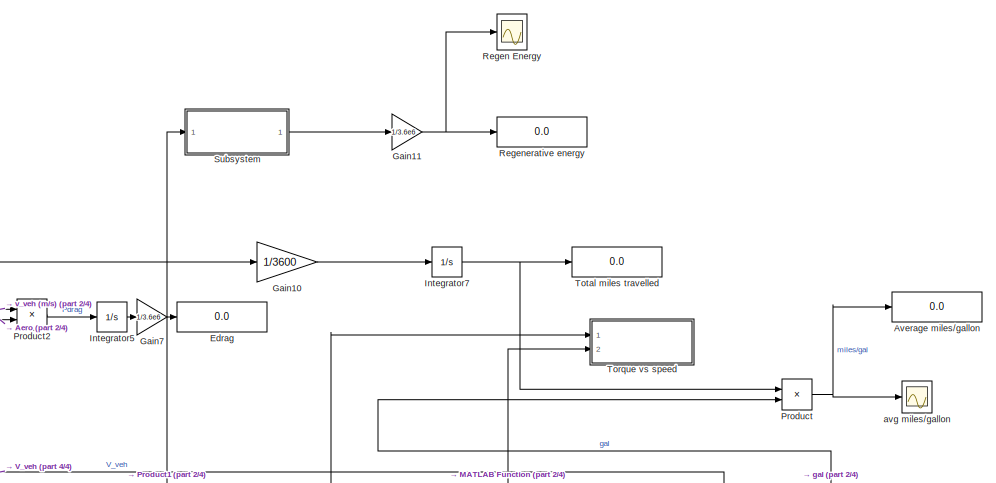
[diagram: root canvas - part 1/4, top center region]
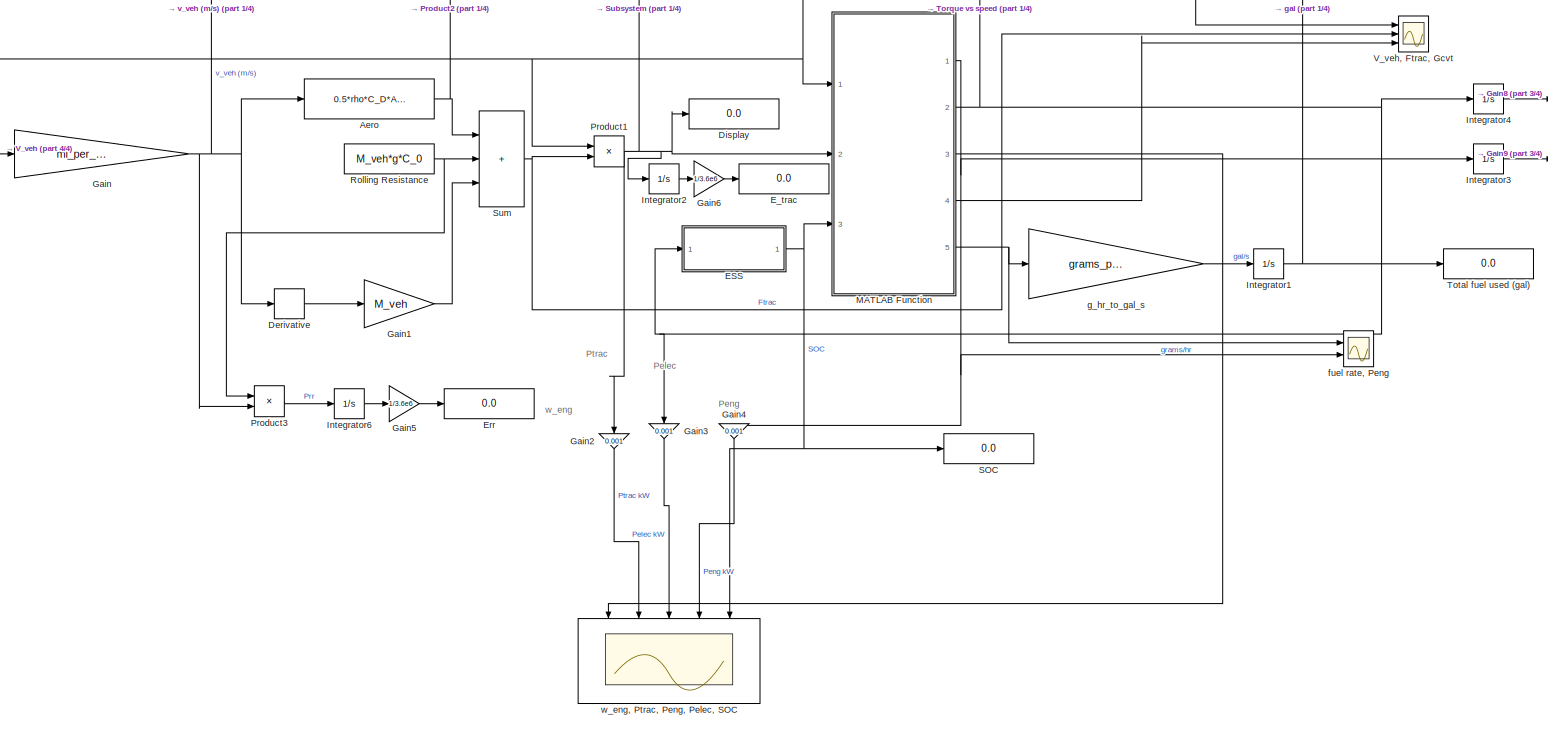
[diagram: root canvas - part 2/4, full width, bottom band]
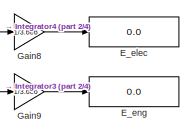
[diagram: root canvas - part 3/4, middle right region]
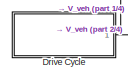
[diagram: root canvas - part 4/4, middle left region]
MODEL slx_c1c3cb7f40b2
KIND model
CONFIG AbsTol = auto
CONFIG EnableMultiTasking = off
CONFIG FixedStep = 1
CONFIG MaxStep = 0.2
CONFIG MinStep = 1e-20
CONFIG RelTol = 1e-3
CONFIG SampleTimeConstraint = Unconstrained
CONFIG SolverName = ode2
CONFIG StartTime = 0.0
CONFIG StopTime = 765
BLOCK [Fcn] Aero
  Expr = 0.5*rho*C_D*A_F*u(1)^2
BLOCK [Display] Average miles//gallon
  Decimation = 1
  Ports = [1]
BLOCK [Derivative] Derivative
BLOCK [Display] Display
  Decimation = 1
  Ports = [1]
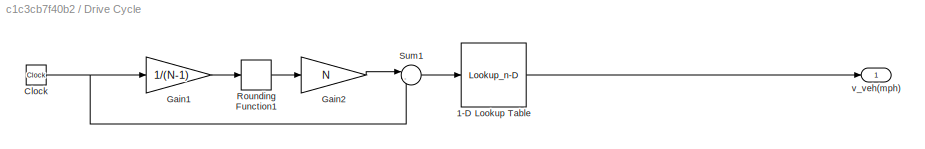
BLOCK [SubSystem] Drive Cycle
  Ports = [0, 1]
  RequestExecContextInheritance = off
BLOCK [Lookup_n-D] Drive Cycle/1-D Lookup Table
  BreakpointsForDimension1 = schedule(:,1)
  InputPortMap = u0
  InternalRulePriority = Speed
  InterpMethod = Cubic spline
  NumberOfTableDimensions = 1
  Ports = [1, 1]
  RndMeth = Simplest
  Table = schedule(:,2)
BLOCK [Clock] Drive Cycle/Clock
BLOCK [Gain] Drive Cycle/Gain1
  Gain = 1/(N-1)
BLOCK [Gain] Drive Cycle/Gain2
  Gain = N
BLOCK [Rounding] Drive Cycle/Rounding Function1
BLOCK [Sum] Drive Cycle/Sum1
  Inputs = |-+
  Ports = [2, 1]
BLOCK [Outport] Drive Cycle/v_veh(mph)
  VectorParamsAs1DForOutWhenUnconnected = off
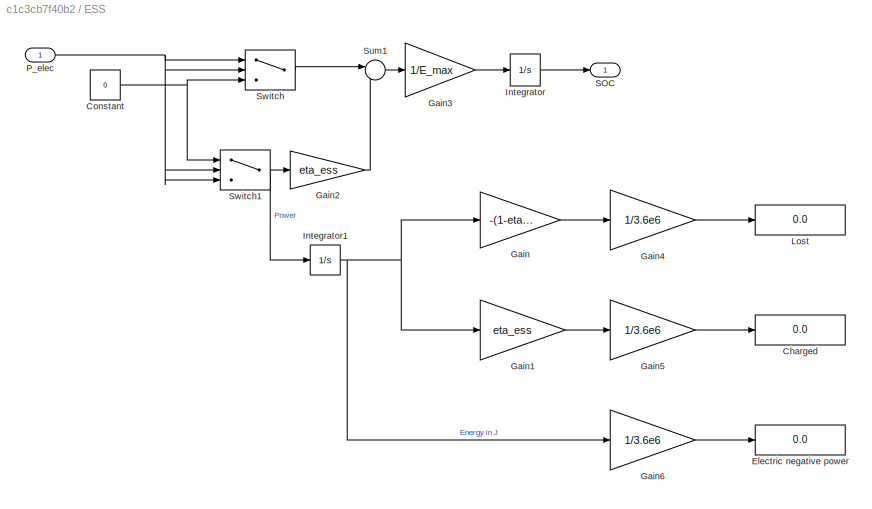
BLOCK [SubSystem] ESS
  Ports = [1, 1]
  RequestExecContextInheritance = off
BLOCK [Display] ESS/Charged
  Decimation = 1
  Ports = [1]
BLOCK [Constant] ESS/Constant
  Value = 0
BLOCK [Display] ESS/Electric negative power
  Decimation = 1
  Ports = [1]
BLOCK [Gain] ESS/Gain
  Gain = -(1-eta_ess)
BLOCK [Gain] ESS/Gain1
  Gain = eta_ess
BLOCK [Gain] ESS/Gain2
  Gain = eta_ess
BLOCK [Gain] ESS/Gain3
  Gain = 1/E_max
  OutDataTypeStr = fixdt('double', 'DataTypeOverride', 'Off')
BLOCK [Gain] ESS/Gain4
  Gain = 1/3.6e6
BLOCK [Gain] ESS/Gain5
  Gain = 1/3.6e6
BLOCK [Gain] ESS/Gain6
  Gain = 1/3.6e6
BLOCK [Integrator] ESS/Integrator
  InitialCondition = SOC_init
  LimitOutput = on
  LowerSaturationLimit = 0
  Ports = [1, 1]
  UpperSaturationLimit = 1
BLOCK [Integrator] ESS/Integrator1
  Ports = [1, 1]
BLOCK [Display] ESS/Lost
  Decimation = 1
  Ports = [1]
BLOCK [Inport] ESS/P_elec
BLOCK [Outport] ESS/SOC
  VectorParamsAs1DForOutWhenUnconnected = off
BLOCK [Sum] ESS/Sum1
  Inputs = |--
  Ports = [2, 1]
BLOCK [Switch] ESS/Switch
  InputSameDT = off
  OutDataTypeStr = double
  SaturateOnIntegerOverflow = off
BLOCK [Switch] ESS/Switch1
  InputSameDT = off
  OutDataTypeStr = double
  SaturateOnIntegerOverflow = off
BLOCK [Display] E_elec
  Decimation = 1
  Ports = [1]
BLOCK [Display] E_eng
  Decimation = 1
  Ports = [1]
BLOCK [Display] E_trac
  Decimation = 1
  Ports = [1]
BLOCK [Display] Edrag
  Decimation = 1
  Ports = [1]
BLOCK [Display] Err
  Decimation = 1
  Ports = [1]
BLOCK [Gain] Gain
  Gain = mi_per_hr_to_m_per_s
BLOCK [Gain] Gain1
  Gain = M_veh
BLOCK [Gain] Gain10
  Gain = 1/3600
BLOCK [Gain] Gain11
  Gain = 1/3.6e6
BLOCK [Gain] Gain2
  Gain = 0.001
  NameLocation = left
BLOCK [Gain] Gain3
  Gain = 0.001
  NameLocation = left
BLOCK [Gain] Gain4
  Gain = 0.001
  NameLocation = left
BLOCK [Gain] Gain5
  Gain = 1/3.6e6
BLOCK [Gain] Gain6
  Gain = 1/3.6e6
BLOCK [Gain] Gain7
  Gain = 1/3.6e6
BLOCK [Gain] Gain8
  Gain = 1/3.6e6
BLOCK [Gain] Gain9
  Gain = 1/3.6e6
BLOCK [Integrator] Integrator1
  Ports = [1, 1]
BLOCK [Integrator] Integrator2
  Ports = [1, 1]
BLOCK [Integrator] Integrator3
  Ports = [1, 1]
BLOCK [Integrator] Integrator4
  Ports = [1, 1]
BLOCK [Integrator] Integrator5
  Ports = [1, 1]
BLOCK [Integrator] Integrator6
  Ports = [1, 1]
BLOCK [Integrator] Integrator7
  Ports = [1, 1]
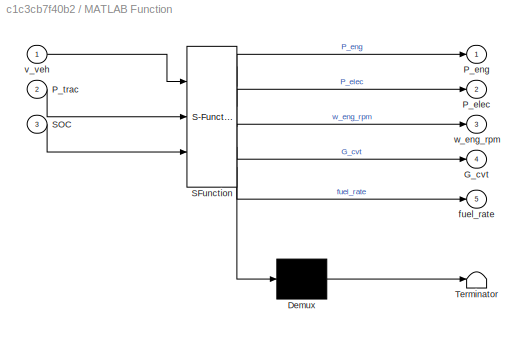
BLOCK [SubSystem] MATLAB Function
  ErrorFcn = Stateflow.Translate.translate
  PermitHierarchicalResolution = ExplicitOnly
  Ports = [3, 5]
  RequestExecContextInheritance = off
  SFBlockType = MATLAB Function
  TreatAsAtomicUnit = on
BLOCK [Demux] MATLAB Function/ Demux 
  Outputs = 1
  Ports = [1, 1]
BLOCK [S-Function] MATLAB Function/ SFunction 
  EnableBusSupport = on
  FunctionName = sf_sfun
  Parameters = eng_map,param
  PortCounts = [3 6]
  Ports = [3, 6]
  SFcnIsStateOwnerBlock = off
  SFunctionDeploymentMode = off
  Tag = Stateflow S-Function 2
BLOCK [Terminator] MATLAB Function/ Terminator 
BLOCK [Outport] MATLAB Function/G_cvt
  Port = 4
  VectorParamsAs1DForOutWhenUnconnected = off
BLOCK [Outport] MATLAB Function/P_elec
  Port = 2
  VectorParamsAs1DForOutWhenUnconnected = off
BLOCK [Outport] MATLAB Function/P_eng
  VectorParamsAs1DForOutWhenUnconnected = off
BLOCK [Inport] MATLAB Function/P_trac
  Port = 2
BLOCK [Inport] MATLAB Function/SOC
  Port = 3
BLOCK [Outport] MATLAB Function/fuel_rate
  Port = 5
  VectorParamsAs1DForOutWhenUnconnected = off
BLOCK [Inport] MATLAB Function/v_veh
BLOCK [Outport] MATLAB Function/w_eng_rpm
  Port = 3
  VectorParamsAs1DForOutWhenUnconnected = off
BLOCK [Product] Product
  Inputs = */
  Ports = [2, 1]
BLOCK [Product] Product1
  Ports = [2, 1]
BLOCK [Product] Product2
  Ports = [2, 1]
BLOCK [Product] Product3
  Ports = [2, 1]
BLOCK [Scope] Regen Energy
  Floating = off
  NameLocation = right
  NumInputPorts = 1
  Ports = [1]
  ScopeSpecificationString = Simulink.scopes.TimeScopeBlockCfg('CurrentConfiguration', extmgr.ConfigurationSet(extmgr.Configuration('Core','General UI',true,'FigureColor',[0.972549019607843 0.972549019607843 0.972549019607843]),extmgr.Configuration('Core','Source UI',true),extmgr.Configuration('Sources','WiredSimulink',true,'DataLoggingVariableName','ScopeData2'),extmgr.Configuration('Visuals','Time Domain',true,'SerializedDi...<+4393ch>
BLOCK [Display] Regenerative energy 
  Decimation = 1
  Ports = [1]
BLOCK [Constant] Rolling Resistance
  Value = M_veh*g*C_0
BLOCK [Display] SOC
  Decimation = 1
  Ports = [1]
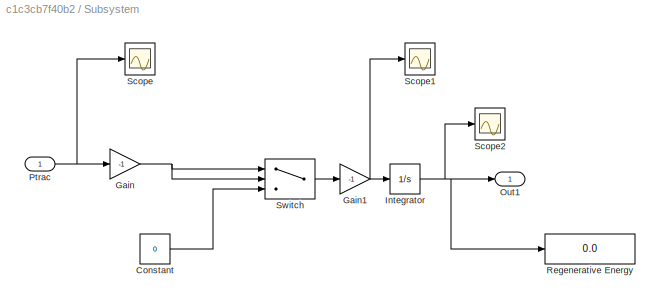
BLOCK [SubSystem] Subsystem
  Ports = [1, 1]
  RequestExecContextInheritance = off
BLOCK [Constant] Subsystem/Constant
  Value = 0
BLOCK [Gain] Subsystem/Gain
  Gain = -1
BLOCK [Gain] Subsystem/Gain1
  Gain = -1
BLOCK [Integrator] Subsystem/Integrator
  Ports = [1, 1]
BLOCK [Outport] Subsystem/Out1
BLOCK [Inport] Subsystem/Ptrac
BLOCK [Display] Subsystem/Regenerative Energy
  Decimation = 1
  Ports = [1]
BLOCK [Scope] Subsystem/Scope
  Floating = off
  NumInputPorts = 1
  Ports = [1]
  ScopeSpecificationString = Simulink.scopes.TimeScopeBlockCfg('CurrentConfiguration', extmgr.ConfigurationSet(extmgr.Configuration('Core','General UI',true),extmgr.Configuration('Core','Source UI',true),extmgr.Configuration('Sources','WiredSimulink',true,'DataLoggingVariableName','ScopeData1'),extmgr.Configuration('Visuals','Time Domain',true,'SerializedDisplays',{struct('MinYLimReal','-120536.25196','MaxYLimReal','105910.66...<+1610ch>
BLOCK [Scope] Subsystem/Scope1
  Floating = off
  NumInputPorts = 1
  Ports = [1]
  ScopeSpecificationString = Simulink.scopes.TimeScopeBlockCfg('CurrentConfiguration', extmgr.ConfigurationSet(extmgr.Configuration('Core','General UI',true,'FigureColor',[1 1 1]),extmgr.Configuration('Core','Source UI',true),extmgr.Configuration('Sources','WiredSimulink',true,'DataLoggingVariableName','ScopeData3'),extmgr.Configuration('Visuals','Time Domain',true,'SerializedDisplays',{struct('MinYLimReal','-110128.00571','M...<+1604ch>
BLOCK [Scope] Subsystem/Scope2
  Floating = off
  NumInputPorts = 1
  Ports = [1]
  ScopeSpecificationString = Simulink.scopes.TimeScopeBlockCfg('CurrentConfiguration', extmgr.ConfigurationSet(extmgr.Configuration('Core','General UI',true,'FigureColor',[1 1 1]),extmgr.Configuration('Core','Source UI',true),extmgr.Configuration('Sources','WiredSimulink',true,'DataLoggingVariableName','ScopeData4'),extmgr.Configuration('Visuals','Time Domain',true,'SerializedDisplays',{struct('MinYLimReal','-1957875.0918','M...<+1613ch>
BLOCK [Switch] Subsystem/Switch
  Criteria = u2 > Threshold
  InputSameDT = off
  SaturateOnIntegerOverflow = off
BLOCK [Sum] Sum
  IconShape = rectangular
  Inputs = +++
  Ports = [3, 1]
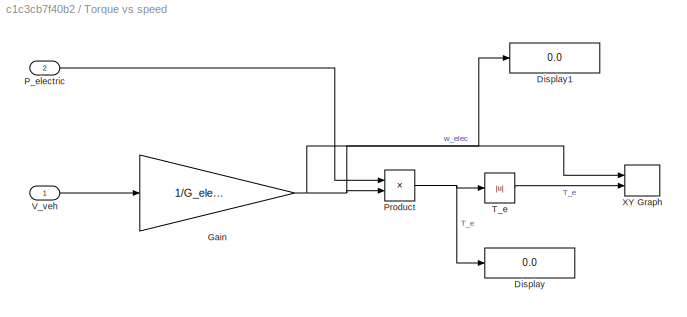
BLOCK [SubSystem] Torque vs speed
  Ports = [2]
  RequestExecContextInheritance = off
BLOCK [Display] Torque vs speed/Display
  Decimation = 1
  Ports = [1]
BLOCK [Display] Torque vs speed/Display1
  Decimation = 1
  Ports = [1]
BLOCK [Gain] Torque vs speed/Gain
  Gain = 1/G_elec*G_diff*r_wheel
BLOCK [Inport] Torque vs speed/P_electric
  Port = 2
BLOCK [Product] Torque vs speed/Product
  Inputs = */
  Ports = [2, 1]
BLOCK [Abs] Torque vs speed/T_e
  SaturateOnIntegerOverflow = off
BLOCK [Inport] Torque vs speed/V_veh
BLOCK [Record] Torque vs speed/XY Graph
  CompatibilityTag = XY
  FileSettingsInternal = {"entries":[{"content":{"excelSettings":{"content":{},"type":"Streamout.ExcelSettings"}},"type":"Streamout.FileSettingStorage","uuid":"9371f16c-9042-43f9-9f3b-7871b295fad2"}],"packageUris":["http://schema.mathworks.com/mf0/streamout_blocks/R2020a"],"version":"1.0"}
  Layout = [1 1]
  Ports = [2]
  SignalsInternal = {"entries":[{"content":{"signals":[{"content":{"blockPath":["project12020a/Torque vs speed/XY Graph"],"channel":[],"dimensions":[1],"domain":"project12020a/Torque vs speed/XY Graph","lineColor":"#a2142f","plots":[1],"port":1,"sid":[""],"signalID":864,"signalName":"w_elec"},"type":"RecordBlkView.Signal","uuid":"17ac89e1-f93b-4719-ba3f-bdfb878589d7"},{"content":{"blockPath":["project12020a/Torque vs...<+440ch>
  VisualizationBindings = {"xyplotplugin":{"info":[{"series":[{"bindingParametersList":[{"parameter":"X-Axis","signalID":864,"signalName":"w_elec"},{"parameter":"Y-Axis","signalID":868,"signalName":"T_e"}],"seriesID":20207},{"bindingParametersList":[{"parameter":"Y-Axis","signalID":864,"signalName":"w_elec"}],"seriesID":850}],"subplotID":1}]}}
BLOCK [Display] Total fuel used (gal)
  Decimation = 1
  Ports = [1]
BLOCK [Display] Total miles travelled
  Decimation = 1
  Ports = [1]
BLOCK [Scope] V_veh, Ftrac, Gcvt
  Floating = off
  NameLocation = right
  NumInputPorts = 3
  Ports = [3]
  ScopeSpecificationString = Simulink.scopes.TimeScopeBlockCfg('CurrentConfiguration', extmgr.ConfigurationSet(extmgr.Configuration('Core','General UI',true,'FigureColor',[0.972549019607843 0.972549019607843 0.972549019607843]),extmgr.Configuration('Core','Source UI',true),extmgr.Configuration('Sources','WiredSimulink',true,'DataLoggingVariableName','ScopeData1'),extmgr.Configuration('Visuals','Time Domain',true,'SerializedDi...<+4467ch>
BLOCK [Scope] avg miles//gallon
  Floating = off
  NumInputPorts = 1
  Ports = [1]
  ScopeSpecificationString = Simulink.scopes.TimeScopeBlockCfg('CurrentConfiguration', extmgr.ConfigurationSet(extmgr.Configuration('Core','General UI',true,'FigureColor',[0.972549019607843 0.972549019607843 0.972549019607843]),extmgr.Configuration('Core','Source UI',true),extmgr.Configuration('Sources','WiredSimulink',true,'DataLoggingVariableName','ScopeData1'),extmgr.Configuration('Visuals','Time Domain',true,'SerializedDi...<+1885ch>
BLOCK [Scope] fuel rate, Peng
  Floating = off
  NameLocation = right
  NumInputPorts = 2
  Ports = [2]
  ScopeSpecificationString = Simulink.scopes.TimeScopeBlockCfg('CurrentConfiguration', extmgr.ConfigurationSet(extmgr.Configuration('Core','General UI',true,'FigureColor',[0.972549019607843 0.972549019607843 0.972549019607843]),extmgr.Configuration('Core','Source UI',true),extmgr.Configuration('Sources','WiredSimulink',true,'DataLoggingVariableName','ScopeData1'),extmgr.Configuration('Visuals','Time Domain',true,'SerializedDi...<+4471ch>
BLOCK [Gain] g_hr_to_gal_s
  Gain = grams_per_hr_to_gal_per_s
BLOCK [Scope] w_eng, Ptrac, Peng, Pelec, SOC
  Floating = off
  NameLocation = left
  NumInputPorts = 5
  Ports = [5]
  ScopeSpecificationString = Simulink.scopes.TimeScopeBlockCfg('CurrentConfiguration', extmgr.ConfigurationSet(extmgr.Configuration('Core','General UI',true,'FigureColor',[0.972549019607843 0.972549019607843 0.972549019607843]),extmgr.Configuration('Core','Source UI',true),extmgr.Configuration('Sources','WiredSimulink',true,'DataLoggingVariableName','ScopeData1'),extmgr.Configuration('Visuals','Time Domain',true,'SerializedDi...<+5728ch>
ANNOTATION (root): Pelec
ANNOTATION (root): Peng
ANNOTATION (root): Ptrac
ANNOTATION (root): w_eng
NET Aero:1 -> Product2:2, Sum:1
LINE Derivative:1 -> Gain1:1
LINE Drive Cycle/1-D Lookup Table:1 -> Drive Cycle/v_veh(mph):1
NET Drive Cycle/Clock:1 -> Drive Cycle/Gain1:1, Drive Cycle/Sum1:2
LINE Drive Cycle/Gain1:1 -> Drive Cycle/Rounding Function1:1
LINE Drive Cycle/Gain2:1 -> Drive Cycle/Sum1:1
LINE Drive Cycle/Rounding Function1:1 -> Drive Cycle/Gain2:1
LINE Drive Cycle/Sum1:1 -> Drive Cycle/1-D Lookup Table:1
NET Drive Cycle:1 -> Gain10:1, Gain:1, MATLAB Function:1, Product1:1, Torque vs speed:1, V_veh, Ftrac, Gcvt:1
NET ESS/Constant:1 -> ESS/Switch1:1, ESS/Switch:3
LINE ESS/Gain1:1 -> ESS/Gain5:1
LINE ESS/Gain2:1 -> ESS/Sum1:2
LINE ESS/Gain3:1 -> ESS/Integrator:1
LINE ESS/Gain4:1 -> ESS/Lost:1
LINE ESS/Gain5:1 -> ESS/Charged:1
LINE ESS/Gain6:1 -> ESS/Electric negative power:1
LINE ESS/Gain:1 -> ESS/Gain4:1
NET ESS/Integrator1:1 -> ESS/Gain1:1, ESS/Gain6:1, ESS/Gain:1
LINE ESS/Integrator:1 -> ESS/SOC:1
NET ESS/P_elec:1 -> ESS/Switch1:2, ESS/Switch1:3, ESS/Switch:1, ESS/Switch:2
LINE ESS/Sum1:1 -> ESS/Gain3:1
NET ESS/Switch1:1 -> ESS/Gain2:1, ESS/Integrator1:1
LINE ESS/Switch:1 -> ESS/Sum1:1
NET ESS:1 -> MATLAB Function:3, SOC:1, w_eng, Ptrac, Peng, Pelec, SOC:5
LINE Gain10:1 -> Integrator7:1
NET Gain11:1 -> Regen Energy:1, Regenerative energy :1
LINE Gain1:1 -> Sum:3
LINE Gain2:1 -> w_eng, Ptrac, Peng, Pelec, SOC:2
LINE Gain3:1 -> w_eng, Ptrac, Peng, Pelec, SOC:3
LINE Gain4:1 -> w_eng, Ptrac, Peng, Pelec, SOC:4
LINE Gain5:1 -> Err:1
LINE Gain6:1 -> E_trac:1
LINE Gain7:1 -> Edrag:1
LINE Gain8:1 -> E_elec:1
LINE Gain9:1 -> E_eng:1
NET Gain:1 -> Aero:1, Derivative:1, Product2:1, Product3:2
NET Integrator1:1 -> Product:2, Total fuel used (gal):1
LINE Integrator2:1 -> Gain6:1
LINE Integrator3:1 -> Gain9:1
LINE Integrator4:1 -> Gain8:1
LINE Integrator5:1 -> Gain7:1
LINE Integrator6:1 -> Gain5:1
NET Integrator7:1 -> Product:1, Total miles travelled:1
NET MATLAB Function:1 -> Gain4:1, Integrator3:1, fuel rate, Peng:2
NET MATLAB Function:2 -> ESS:1, Gain3:1, Integrator4:1, Torque vs speed:2
LINE MATLAB Function:3 -> w_eng, Ptrac, Peng, Pelec, SOC:1
LINE MATLAB Function:4 -> V_veh, Ftrac, Gcvt:3
NET MATLAB Function:5 -> fuel rate, Peng:1, g_hr_to_gal_s:1
NET Product1:1 -> Display:1, Gain2:1, Integrator2:1, MATLAB Function:2, Subsystem:1
LINE Product2:1 -> Integrator5:1
LINE Product3:1 -> Integrator6:1
NET Product:1 -> Average miles//gallon:1, avg miles//gallon:1
NET Rolling Resistance:1 -> Product3:1, Sum:2
LINE Subsystem/Constant:1 -> Subsystem/Switch:3
NET Subsystem/Gain1:1 -> Subsystem/Integrator:1, Subsystem/Scope1:1
NET Subsystem/Gain:1 -> Subsystem/Switch:1, Subsystem/Switch:2
NET Subsystem/Integrator:1 -> Subsystem/Out1:1, Subsystem/Regenerative Energy:1, Subsystem/Scope2:1
NET Subsystem/Ptrac:1 -> Subsystem/Gain:1, Subsystem/Scope:1
LINE Subsystem/Switch:1 -> Subsystem/Gain1:1
LINE Subsystem:1 -> Gain11:1
NET Sum:1 -> Product1:2, V_veh, Ftrac, Gcvt:2
NET Torque vs speed/Gain:1 -> Torque vs speed/Display1:1, Torque vs speed/Product:2, Torque vs speed/XY Graph:1
LINE Torque vs speed/P_electric:1 -> Torque vs speed/Product:1
NET Torque vs speed/Product:1 -> Torque vs speed/Display:1, Torque vs speed/T_e:1
LINE Torque vs speed/T_e:1 -> Torque vs speed/XY Graph:2
LINE Torque vs speed/V_veh:1 -> Torque vs speed/Gain:1
LINE g_hr_to_gal_s:1 -> Integrator1:1
note: NET lines group one-source signal fan-out (src -> all destinations, sorted); 1:1 wires keep LINE
CHART MATLAB Function states=1 transitions=1
  STATE_LABEL 'eML_blk_kernel()'
  STATE_LABEL 'SCRIPT:\nfunction [P_eng, P_elec, w_eng_rpm, G_cvt, fuel_rate] = fcn(v_veh, P_trac, SOC, param, eng_map)\n%#codegen\n%inputs:\n    % v_veh, m/s\n    % P_trac, W\n    % SOC\n    % param, structure of parameters\n    % eng_map\n\n% outputs:\n    %   P_gen, P_elec in W\n    %   w_eng_rpm, rpm\n    %   G_cvt (cvt ratio)\n    %   Fuel rate, grams/hr\n\nv_veh_min = param.v_veh_min;    % minimum vehicle speed for engine...<+2631ch>'
CHART  states=0 transitions=0
